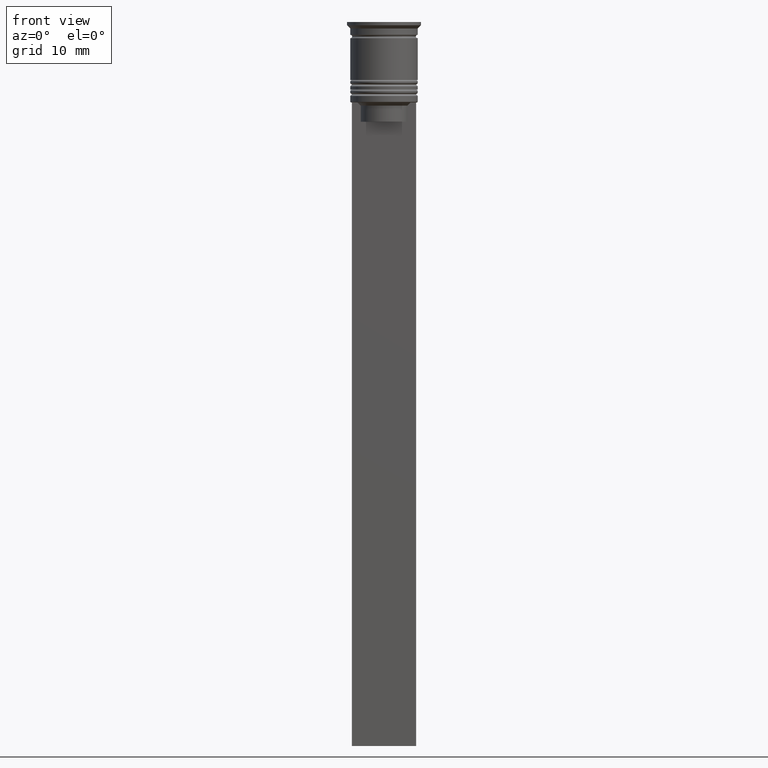
[diagram: clean part render]
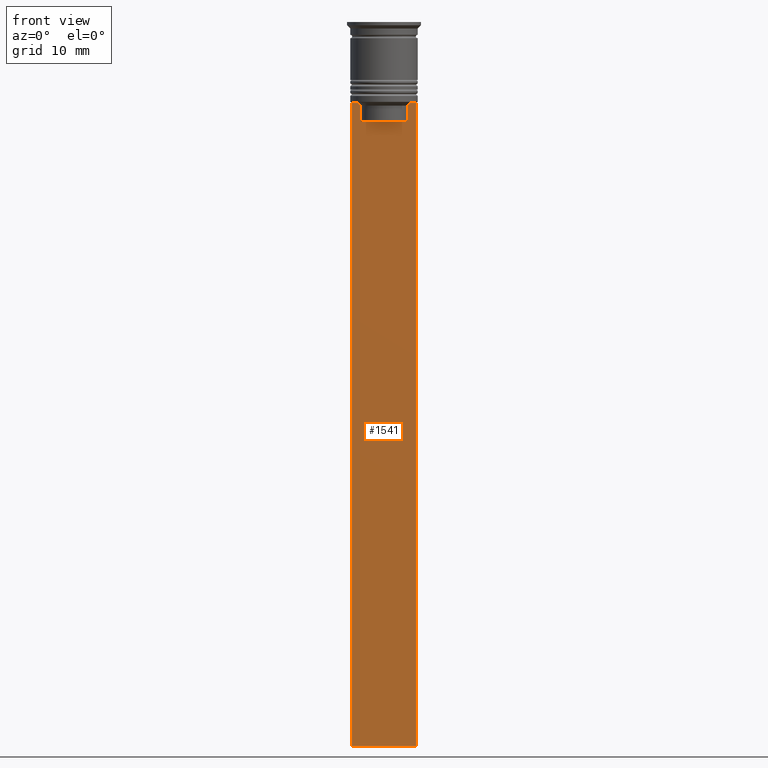
[diagram: same view with one face highlighted and labeled with its STEP entity id]
A machine part, front view. The second image highlights one B-rep face of the part: STEP entity #1541.
In plain terms, the highlighted planar face has unit normal (0, -1, -0).
Its self-contained STEP definition (entity closure, byte-faithful):
#7 = VECTOR ( 'NONE', #1830, 1000.000000000000000 ) ;
#15 = VECTOR ( 'NONE', #1388, 1000.000000000000000 ) ;
#47 = CARTESIAN_POINT ( 'NONE',  ( 4.119769411022908834, -0.5000000000000008882, -12.50000000000000000 ) ) ;
#93 = LINE ( 'NONE', #501, #1713 ) ;
#120 = EDGE_LOOP ( 'NONE', ( #179, #1092, #1982, #1423, #1931, #1782, #772, #2036, #1498, #2008 ) ) ;
#128 = CARTESIAN_POINT ( 'NONE',  ( 3.615591237958188042, -0.5000000000000008882, -13.00000000000000178 ) ) ;
#161 = LINE ( 'NONE', #512, #1301 ) ;
#175 = CARTESIAN_POINT ( 'NONE',  ( -3.615591237958188042, -0.5000000000000008882, -13.00000000000000178 ) ) ;
#179 = ORIENTED_EDGE ( 'NONE', *, *, #1612, .F. ) ;
#210 = LINE ( 'NONE', #752, #7 ) ;
#365 = VERTEX_POINT ( 'NONE', #680 ) ;
#392 = EDGE_CURVE ( 'NONE', #485, #1878, #2012, .T. ) ;
#397 = DIRECTION ( 'NONE',  ( 1.000000000000000000, 0.000000000000000000, 0.000000000000000000 ) ) ;
#400 = EDGE_CURVE ( 'NONE', #485, #2130, #585, .T. ) ;
#485 = VERTEX_POINT ( 'NONE', #2189 ) ;
#501 = CARTESIAN_POINT ( 'NONE',  ( 5.000000000000000000, -0.5000000000000008882, -12.50000000000000000 ) ) ;
#504 = VERTEX_POINT ( 'NONE', #564 ) ;
#512 = CARTESIAN_POINT ( 'NONE',  ( 0.000000000000000000, -0.5000000000000008882, -15.50000000000000000 ) ) ;
#564 = CARTESIAN_POINT ( 'NONE',  ( -3.615591237958188486, -0.5000000000000008882, -15.50000000000000000 ) ) ;
#585 = LINE ( 'NONE', #1090, #1524 ) ;
#603 = CARTESIAN_POINT ( 'NONE',  ( 5.000000000000000000, -0.5000000000000008882, -112.5000000000000000 ) ) ;
#627 = VECTOR ( 'NONE', #1644, 1000.000000000000000 ) ;
#659 = VERTEX_POINT ( 'NONE', #2261 ) ;
#674 = VERTEX_POINT ( 'NONE', #47 ) ;
#680 = CARTESIAN_POINT ( 'NONE',  ( 5.000000000000000000, -0.5000000000000008882, -12.50000000000000000 ) ) ;
#746 = DIRECTION ( 'NONE',  ( 0.000000000000000000, 0.000000000000000000, -1.000000000000000000 ) ) ;
#752 = CARTESIAN_POINT ( 'NONE',  ( 5.000000000000000000, -0.5000000000000008882, -112.5000000000000000 ) ) ;
#772 = ORIENTED_EDGE ( 'NONE', *, *, #2242, .F. ) ;
#823 = LINE ( 'NONE', #1891, #15 ) ;
#854 = CARTESIAN_POINT ( 'NONE',  ( 3.951794168112528816, -0.5000000000000008882, -12.66675163073525745 ) ) ;
#897 = CARTESIAN_POINT ( 'NONE',  ( -3.783746449387932476, -0.5000000000000008882, -12.83342999751715752 ) ) ;
#932 = LINE ( 'NONE', #1651, #1556 ) ;
#941 = CARTESIAN_POINT ( 'NONE',  ( -4.119769411022908834, -0.5000000000000008882, -12.50000000000000000 ) ) ;
#951 = EDGE_CURVE ( 'NONE', #1902, #1878, #210, .T. ) ;
#991 = B_SPLINE_CURVE_WITH_KNOTS ( 'NONE', 3,
 ( #941, #1095, #897, #1988 ),
 .UNSPECIFIED., .F., .F.,
 ( 4, 4 ),
 ( 0.007067514914986629433, 0.007777582239375527978 ),
 .UNSPECIFIED. ) ;
#1090 = CARTESIAN_POINT ( 'NONE',  ( 5.000000000000000000, -0.5000000000000008882, -12.50000000000000000 ) ) ;
#1092 = ORIENTED_EDGE ( 'NONE', *, *, #400, .F. ) ;
#1095 = CARTESIAN_POINT ( 'NONE',  ( -3.951794205566887985, -0.5000000000000008882, -12.66675159355373914 ) ) ;
#1167 = CARTESIAN_POINT ( 'NONE',  ( 4.119769411022908834, -0.5000000000000008882, -12.50000000000000000 ) ) ;
#1176 = B_SPLINE_CURVE_WITH_KNOTS ( 'NONE', 3,
 ( #128, #1195, #854, #1167 ),
 .UNSPECIFIED., .F., .F.,
 ( 4, 4 ),
 ( 0.01745179617248909451, 0.01816207215777257411 ),
 .UNSPECIFIED. ) ;
#1195 = CARTESIAN_POINT ( 'NONE',  ( 3.783746406711540278, -0.5000000000000008882, -12.83343003979123509 ) ) ;
#1259 = PLANE ( 'NONE',  #1906 ) ;
#1260 = DIRECTION ( 'NONE',  ( 1.000000000000000000, 0.000000000000000000, 0.000000000000000000 ) ) ;
#1268 = CARTESIAN_POINT ( 'NONE',  ( -4.999999999999999112, -0.5000000000000008882, -2.450124378879110054 ) ) ;
#1272 = FACE_OUTER_BOUND ( 'NONE', #120, .T. ) ;
#1301 = VECTOR ( 'NONE', #1260, 1000.000000000000000 ) ;
#1367 = EDGE_CURVE ( 'NONE', #659, #1883, #2265, .T. ) ;
#1388 = DIRECTION ( 'NONE',  ( 0.000000000000000000, 0.000000000000000000, -1.000000000000000000 ) ) ;
#1398 = CARTESIAN_POINT ( 'NONE',  ( -4.119769411022908834, -0.5000000000000008882, -12.50000000000000000 ) ) ;
#1419 = CARTESIAN_POINT ( 'NONE',  ( 3.615591237958188042, -0.5000000000000008882, 0.000000000000000000 ) ) ;
#1423 = ORIENTED_EDGE ( 'NONE', *, *, #951, .F. ) ;
#1481 = DIRECTION ( 'NONE',  ( 0.000000000000000000, 0.000000000000000000, -1.000000000000000000 ) ) ;
#1498 = ORIENTED_EDGE ( 'NONE', *, *, #2314, .F. ) ;
#1524 = VECTOR ( 'NONE', #397, 1000.000000000000000 ) ;
#1541 = ADVANCED_FACE ( 'NONE', ( #1272 ), #1259, .T. ) ;
#1547 = VERTEX_POINT ( 'NONE', #175 ) ;
#1556 = VECTOR ( 'NONE', #746, 1000.000000000000000 ) ;
#1612 = EDGE_CURVE ( 'NONE', #2130, #1547, #991, .T. ) ;
#1618 = EDGE_CURVE ( 'NONE', #1547, #504, #932, .T. ) ;
#1644 = DIRECTION ( 'NONE',  ( 0.000000000000000000, 0.000000000000000000, -1.000000000000000000 ) ) ;
#1651 = CARTESIAN_POINT ( 'NONE',  ( -3.615591237958188042, -0.5000000000000008882, 0.000000000000000000 ) ) ;
#1659 = DIRECTION ( 'NONE',  ( 0.000000000000000000, -1.000000000000000000, -0.000000000000000000 ) ) ;
#1713 = VECTOR ( 'NONE', #1734, 1000.000000000000000 ) ;
#1734 = DIRECTION ( 'NONE',  ( 1.000000000000000000, 0.000000000000000000, 0.000000000000000000 ) ) ;
#1782 = ORIENTED_EDGE ( 'NONE', *, *, #2212, .F. ) ;
#1784 = VECTOR ( 'NONE', #2143, 1000.000000000000000 ) ;
#1830 = DIRECTION ( 'NONE',  ( -1.000000000000000000, 0.000000000000000000, 0.000000000000000000 ) ) ;
#1878 = VERTEX_POINT ( 'NONE', #2045 ) ;
#1883 = VERTEX_POINT ( 'NONE', #2188 ) ;
#1891 = CARTESIAN_POINT ( 'NONE',  ( 5.000000000000000000, -0.5000000000000008882, -2.450124378879110054 ) ) ;
#1902 = VERTEX_POINT ( 'NONE', #603 ) ;
#1906 = AXIS2_PLACEMENT_3D ( 'NONE', #1974, #1659, #1481 ) ;
#1931 = ORIENTED_EDGE ( 'NONE', *, *, #2135, .F. ) ;
#1974 = CARTESIAN_POINT ( 'NONE',  ( 5.000000000000000000, -0.5000000000000008882, -2.450124378879110054 ) ) ;
#1982 = ORIENTED_EDGE ( 'NONE', *, *, #392, .T. ) ;
#1988 = CARTESIAN_POINT ( 'NONE',  ( -3.615591237958188042, -0.5000000000000008882, -13.00000000000000178 ) ) ;
#2008 = ORIENTED_EDGE ( 'NONE', *, *, #1618, .F. ) ;
#2012 = LINE ( 'NONE', #1268, #627 ) ;
#2036 = ORIENTED_EDGE ( 'NONE', *, *, #1367, .F. ) ;
#2045 = CARTESIAN_POINT ( 'NONE',  ( -4.999999999999999112, -0.5000000000000008882, -112.5000000000000000 ) ) ;
#2130 = VERTEX_POINT ( 'NONE', #1398 ) ;
#2135 = EDGE_CURVE ( 'NONE', #365, #1902, #823, .T. ) ;
#2143 = DIRECTION ( 'NONE',  ( -0.000000000000000000, -0.000000000000000000, 1.000000000000000000 ) ) ;
#2188 = CARTESIAN_POINT ( 'NONE',  ( 3.615591237958188042, -0.5000000000000008882, -13.00000000000000178 ) ) ;
#2189 = CARTESIAN_POINT ( 'NONE',  ( -4.999999999999999112, -0.5000000000000008882, -12.50000000000000000 ) ) ;
#2212 = EDGE_CURVE ( 'NONE', #674, #365, #93, .T. ) ;
#2242 = EDGE_CURVE ( 'NONE', #1883, #674, #1176, .T. ) ;
#2261 = CARTESIAN_POINT ( 'NONE',  ( 3.615591237958188486, -0.5000000000000008882, -15.50000000000000000 ) ) ;
#2265 = LINE ( 'NONE', #1419, #1784 ) ;
#2314 = EDGE_CURVE ( 'NONE', #504, #659, #161, .T. ) ;